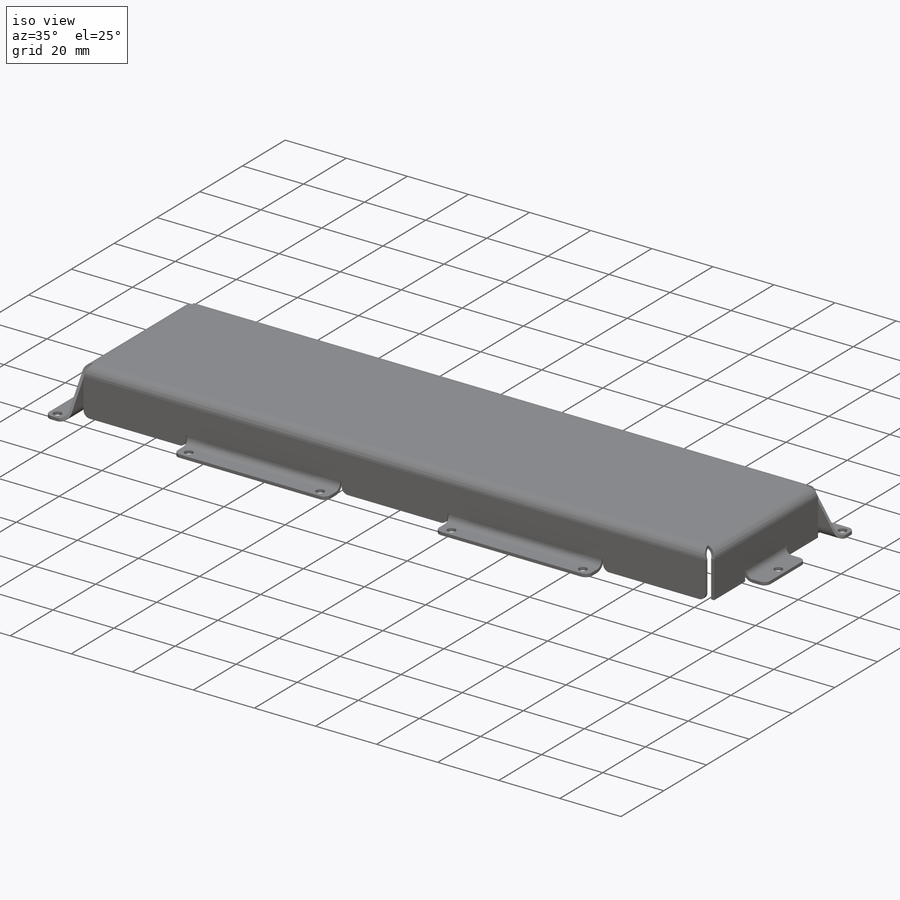
[diagram: iso view]
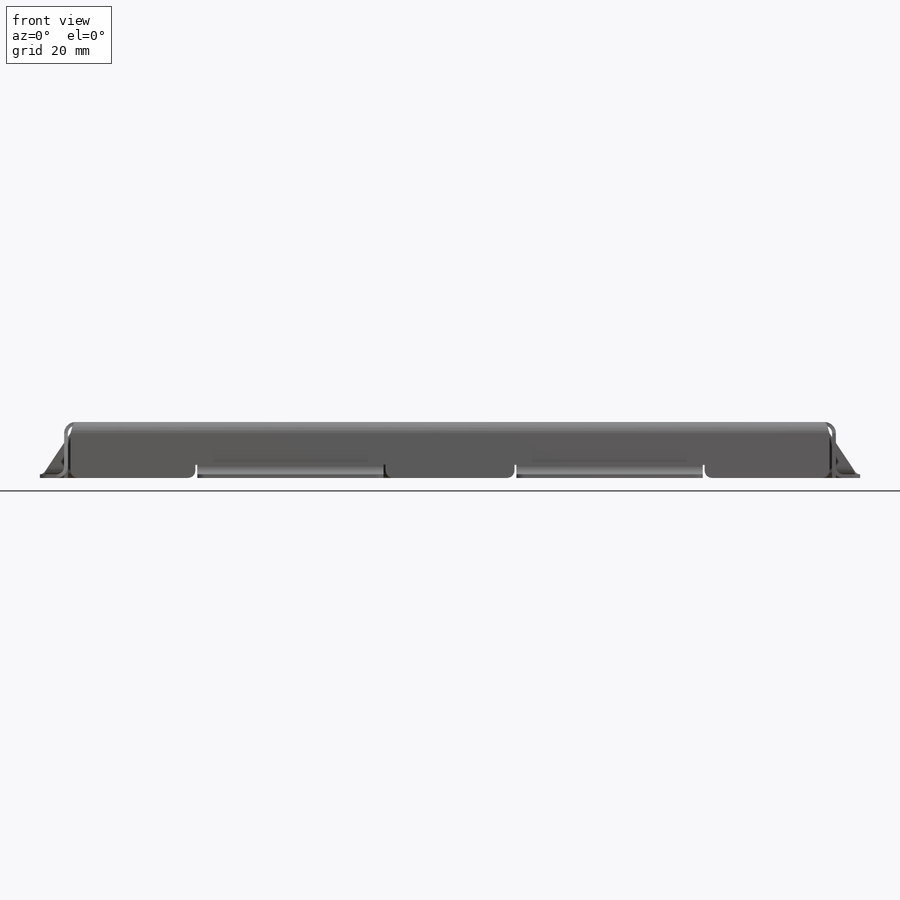
[diagram: front view]
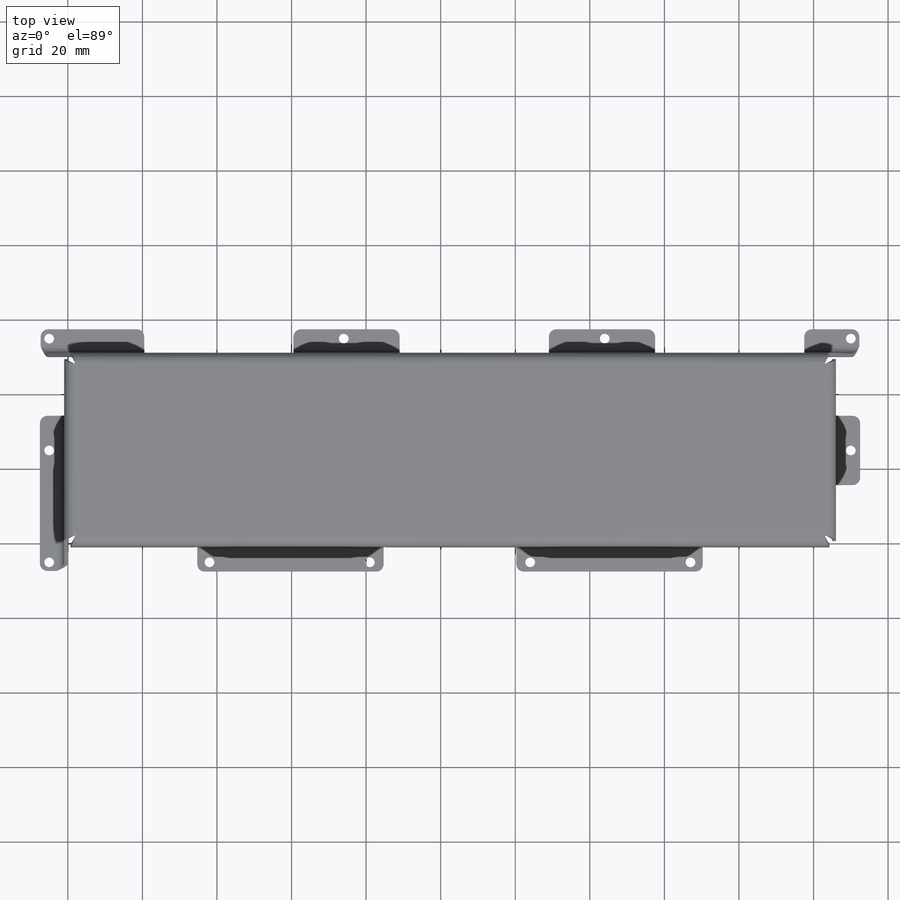
[diagram: top view]
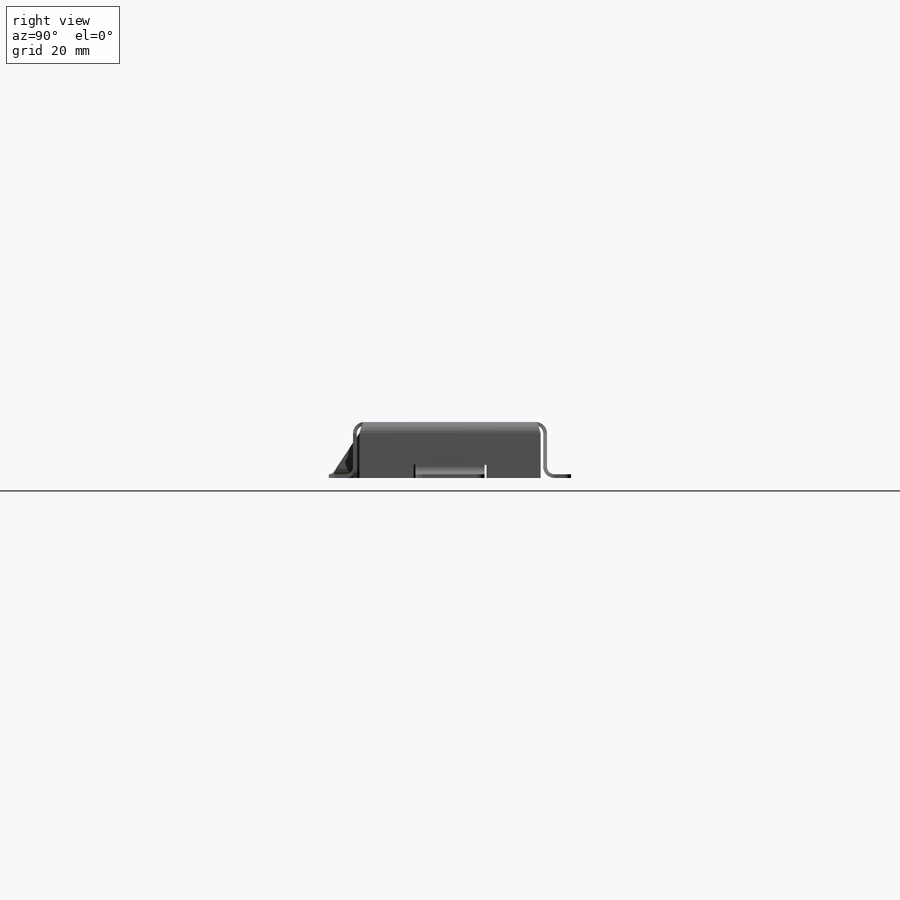
[diagram: right view]
SOLIDWORKS PART (.sldprt)
format: sldprt  version: not decoded by parser v0  size: 1,415,168 bytes
history: native  units: mm
features: sketch x42, sheet_metal_op x21, fillet x9, plane x3, extrude x3, cut_extrude x2, hole x2, material x1 + 55 further entries (+9 scaffold rows collapsed; 9 parser-record rows omitted)
feature tree (156):
  scaffold x9  (default folders/planes/origin — collapsed)
  material  "3.3535 (EN-AW 5754)"
  plane  "Ebene vorne"
  plane  "Ebene oben"
  plane  "Ebene rechts"
  sketch  "Skizze1"  dims[c1.D1=205.0mm c1.D2=50.0mm c2.D1=1.0mm c2.D2=0.5 c2.D3=0.0mm c2.D6=500.0mm]
  sheet_metal_op  "Basis-Blech1"
  sketch  "Skizze14"
  sketch  "Skizze15"
  sketch  "Skizze17"
  sketch  "Skizze37"  dims[D1=2.0mm D4=90.0deg D5=1.0 D8=1.0mm D9=1.0mm]
  sheet_metal_op  "Kantenbiegung2"
  sheet_metal_op  "Kantenbiegung4"
  sheet_metal_op  "Kantenbiegung10"
  sketch  "Skizze38"  dims[D1=8.0mm D2=12.0mm]
  extrude  "Aufsatz-Linear austragen1"  Depth=1mm
  sketch  "Skizze40"  dims[D1=12.0mm D2=8.0mm]
  extrude  "Aufsatz-Linear austragen2"  Depth=1mm
  sketch  "Skizze41"  dims[D1=8.0mm D2=12.0mm]
  extrude  "Aufsatz-Linear austragen3"  Depth=1mm
  sketch  "Skizze43"  dims[D1=40.0mm D2=6.0mm D3=28.5mm D4=14.79mm]
  cut_extrude  "Schnitt-Linear austragen2"  Depth=1mm Kante-Lasche3=0
  sketch  "Skizze29"  dims[D1=15.0mm D2=15.0mm]
  sketch  "Skizze31"  dims[D1=34.0mm D2=30.0mm D3=50.0mm D4=50.0mm]
  sketch  "Skizze32"  dims[D1=15.0mm]
  sketch  "Skizze45"
  sketch  "Skizze47"
  sketch  "Skizze49"
  sketch  "Skizze51"  dims[D1=10.0mm]
  sheet_metal_op  "Kantenbiegung6"
  sheet_metal_op  "Kantenbiegung8"
  sheet_metal_op  "Kantenbiegung9"
  sheet_metal_op  "Kantenbiegung11"
  sheet_metal_op  "Kantenbiegung12"
  sheet_metal_op  "Kantenbiegung13"
  sheet_metal_op  "Kantenbiegung14"  Kante-Lasche5=0
  sketch  "Skizze60"  dims[D1=50.0mm D2=34.0mm]
  sheet_metal_op  "Kantenbiegung16"
  hole  "Durchgangsloch für M21"  Diameter=2.6mm Depth=10mm
  sketch  "Skizze35"  dims[D1=66.0mm D2=70.0mm D3=79.0mm D4=30.0mm D5=30.0mm D6=43.0mm D7=43.0mm D8=43.0mm D9=43.0mm D10=30.0mm D11=66.0mm D12=5.0mm D13=5.0mm]
  sketch  "Skizze34"  dims[hole-wizard template sketch: 46 standard entries collapsed; hole parameters kept: c15.Bohrerdurchmesser=2.6mm c15.Bohrungstiefe=10.0mm c15.D3=~14.816244mm c15.Spitzenwinkel=118.0deg]
  fillet  "Verrundung1"  Radius=2mm
  hole  "Verrundung2"  Diameter=2mm
  sketch  "Skizze53"
  sketch  "Biegung-Linien1"
  sketch  "Rahmen1"
  sketch  "Skizze52"  dims[c1.D1=0.8mm c1.D6=~0.970225mm c1.D8=0.8mm c1.D9=0.8mm c1.D2=3.0mm c1.D3=10.0mm c1.D5=12.0mm c2.D6=3.0mm c2.D7=3.0mm c2.D10=3.0mm c2.D11=10.0mm c2.D12=14.0mm c2.D4=16.0 c2.D13=16.0 c2.D14=17.0]
  cut_extrude  "Schnitt-Linear austragen3"  Depth=1mm
  sheet_metal_op  "Blech(1)"
  "Abwicklung(1)"
  sketch  "Biegung-Linien2"
  sketch  "Rahmen2"
  parser-record x9  (decoder bookkeeping rows leaked as tree rows — omitted from the tree; the rows remain in map.json)
  fillet  "Blech(2)"  Radius=1mm
  sheet_metal_op  "Abwicklung(1)"
  sketch  "Biegung-Linien2"
  sketch  "Rahmen2"
  "Abwickeln-<Kantenbiegung2>1"
  "Abwickeln-<Kantenbiegung4>1"
  "Abwickeln-<Kantenbiegung10>1"
  fillet  "Blech(4)"  Radius=1mm
  sheet_metal_op  "Abwicklung(1)"
  sketch  "Biegung-Linien2"
  sketch  "Rahmen2"
  "Abwickeln-<Kantenbiegung1>1"
  "Abwickeln-<Kantenbiegung2>1"
  "Abwickeln-<Kantenbiegung4>1"
  "Abwickeln-<Kantenbiegung6>1"
  "Abwickeln-<Kantenbiegung8>1"
  "Abwickeln-<Kantenbiegung9>1"
  "Abwickeln-<Kantenbiegung10>2"
  "Abwickeln-<Kantenbiegung11>1"
  "Abwickeln-<Kantenbiegung12>1"
  "Abwickeln-<Kantenbiegung13>1"
  "Abwickeln-<Kantenbiegung14>1"
  fillet  "Blech(5)"  Radius=1mm
  sheet_metal_op  "Abwicklung(1)"
  sketch  "Biegung-Linien2"
  sketch  "Rahmen2"
  "Abwickeln-<Kantenbiegung1>1"
  "Abwickeln-<Kantenbiegung2>1"
  "Abwickeln-<Kantenbiegung4>1"
  "Abwickeln-<Kantenbiegung6>1"
  "Abwickeln-<Kantenbiegung8>1"
  "Abwickeln-<Kantenbiegung9>1"
  "Abwickeln-<Kantenbiegung10>3"
  "Abwickeln-<Kantenbiegung11>2"
  "Abwickeln-<Kantenbiegung12>2"
  "Abwickeln-<Kantenbiegung13>2"
  "Abwickeln-<Kantenbiegung14>2"
  "Abwickeln-<Kantenbiegung16>2"
  sketch  "Skizze53-1"
  fillet  "Blech(6)"  Radius=1mm
  sheet_metal_op  "Abwicklung(1)"
  sketch  "Biegung-Linien2"
  sketch  "Rahmen2"
  "Abwickeln-<Kantenbiegung1>1"
  "Abwickeln-<Kantenbiegung2>1"
  "Abwickeln-<Kantenbiegung4>1"
  "Abwickeln-<Kantenbiegung10>1"
  fillet  "Blech(7)"  Radius=1mm
  sheet_metal_op  "Abwicklung(1)"
  sketch  "Biegung-Linien2"
  sketch  "Rahmen2"
  "Abwickeln-<Kantenbiegung1>1"
  "Abwickeln-<Kantenbiegung2>1"
  "Abwickeln-<Kantenbiegung4>1"
  "Abwickeln-<Kantenbiegung10>1"
  fillet  "Blech(8)"  Radius=1mm
  sheet_metal_op  "Abwicklung(1)"
  sketch  "Biegung-Linien2"
  sketch  "Rahmen2"
  "Abwickeln-<Kantenbiegung1>1"
  "Abwickeln-<Kantenbiegung2>1"
  "Abwickeln-<Kantenbiegung4>1"
  "Abwickeln-<Kantenbiegung10>1"
  fillet  "Blech(10)"  Radius=1mm
  sheet_metal_op  "Abwicklung(1)"
  sketch  "Biegung-Linien2"
  sketch  "Rahmen2"
  "Abwickeln-<Kantenbiegung1>1"
  "Abwickeln-<Kantenbiegung2>1"
  "Abwickeln-<Kantenbiegung4>1"
  "Abwickeln-<Kantenbiegung10>1"
  fillet  "Blech(13)"  Radius=1mm
  sheet_metal_op  "Abwicklung(1)"
  sketch  "Biegung-Linien2"
  sketch  "Rahmen2"
  "Abwickeln-<Kantenbiegung1>1"
  "Abwickeln-<Kantenbiegung2>1"
  "Abwickeln-<Kantenbiegung4>1"
  "Abwickeln-<Kantenbiegung6>1"
  "Abwickeln-<Kantenbiegung8>1"
  "Abwickeln-<Kantenbiegung9>1"
  "Abwickeln-<Kantenbiegung10>2"
  "Abwickeln-<Kantenbiegung11>1"
  "Abwickeln-<Kantenbiegung12>1"
  "Abwickeln-<Kantenbiegung13>1"
  "Abwickeln-<Kantenbiegung14>1"
  "Abwickeln-<Kantenbiegung16>1"
decode coverage: 31 of 79 modeling features carry decoded parameters; 55 rows unclassified (native names shown)
note: ~ marks probable driven/reference dimensions
note: suppression state not decoded; provenance and decode notes live in map.json
